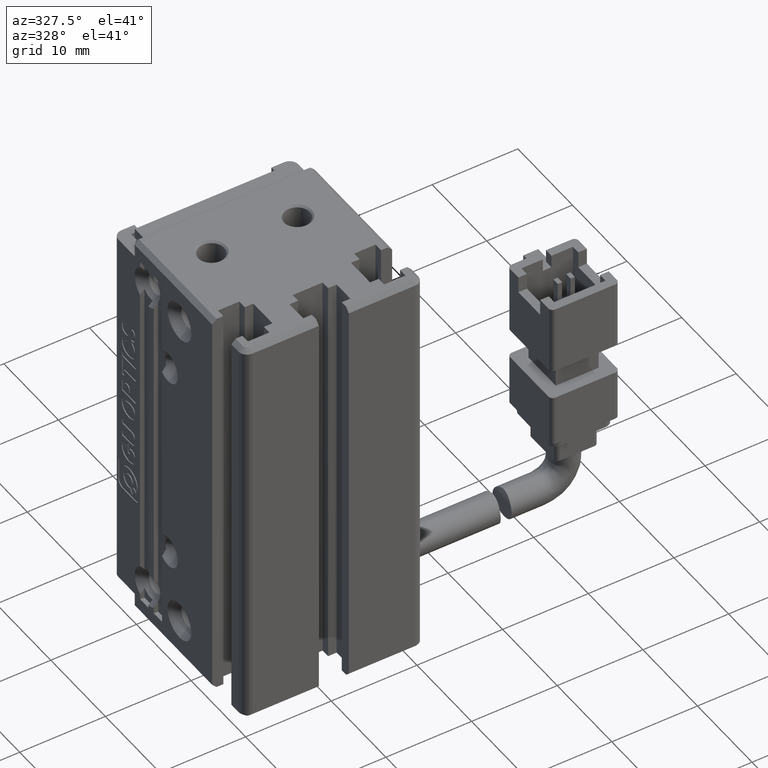
[diagram: clean part render]
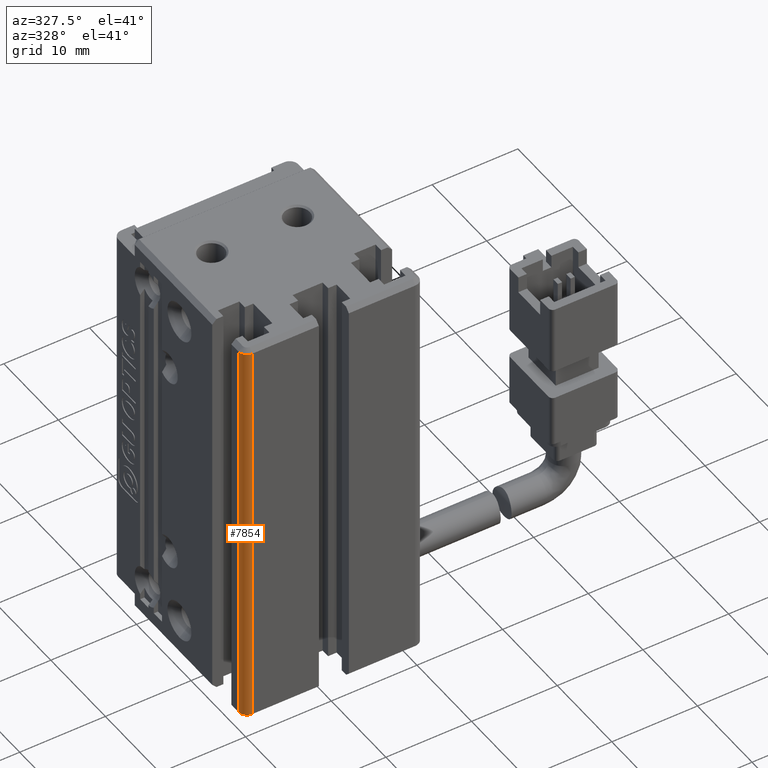
[diagram: same view with one face highlighted and labeled with its STEP entity id]
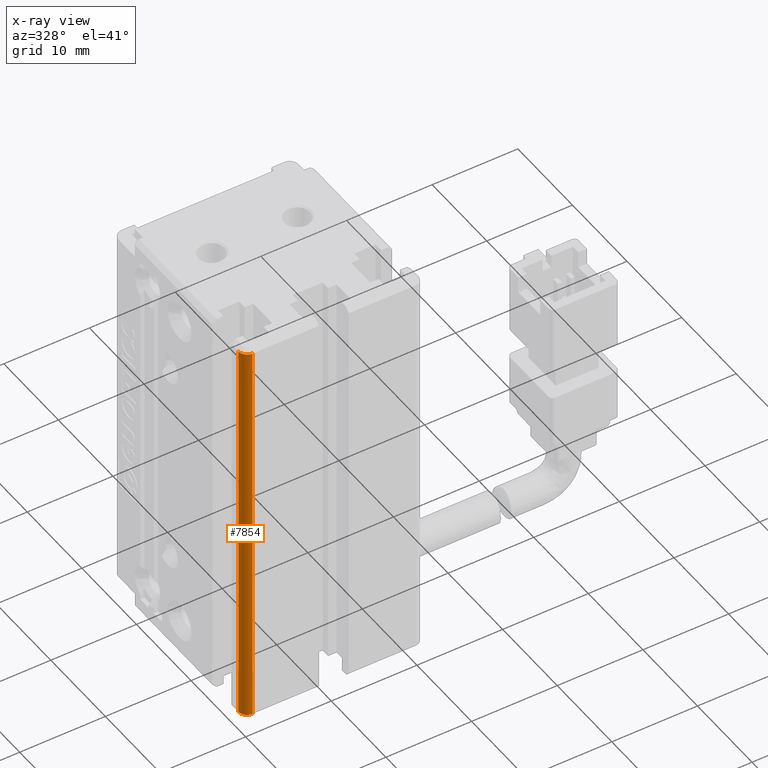
[diagram: x-ray of the same camera — body ghosted, the highlighted face saturated]
A machine part, auxiliary view. The second image highlights one B-rep face of the part: STEP entity #7854.
The next image is the same camera in x-ray: the body ghosted, the highlighted face saturated — about 0% of this face is hidden behind the body in this view.
In plain terms, the highlighted cylindrical surface (edge-blend (fillet) strip) has radius 1 mm, axis along (-0, -0, -1).
Its self-contained STEP definition (entity closure, byte-faithful):
#1322 = DIRECTION ( 'NONE',  ( -0.0000000000000000000, -0.0000000000000000000, -1.000000000000000000 ) ) ;
#2115 = EDGE_CURVE ( 'NONE', #31357, #23842, #9657, .T. ) ;
#6256 = CARTESIAN_POINT ( 'NONE',  ( 31.42537974683542900, 10.99073232305496000, -138.5000000000031800 ) ) ;
#7444 = CARTESIAN_POINT ( 'NONE',  ( 30.42537974683542500, 11.99073232304837000, -91.00000000000000000 ) ) ;
#7785 = EDGE_CURVE ( 'NONE', #13890, #22453, #28675, .T. ) ;
#7854 = ADVANCED_FACE ( 'NONE', ( #15033 ), #19241, .T. ) ;
#8144 = ORIENTED_EDGE ( 'NONE', *, *, #21600, .F. ) ;
#8344 = CARTESIAN_POINT ( 'NONE',  ( 31.42537974683542900, 11.99073232304837000, -91.00000000000000000 ) ) ;
#8643 = CIRCLE ( 'NONE', #21533, 1.000000000000000900 ) ;
#9271 = CARTESIAN_POINT ( 'NONE',  ( 31.42537974683542900, 11.99073232304837000, -91.50000000000000000 ) ) ;
#9657 = LINE ( 'NONE', #21112, #10577 ) ;
#10577 = VECTOR ( 'NONE', #35761, 1000.000000000000000 ) ;
#10613 = CARTESIAN_POINT ( 'NONE',  ( 31.42537974683542900, 10.99073232304837000, -91.50000000000000000 ) ) ;
#11218 = DIRECTION ( 'NONE',  ( -1.000000000000000000, 0.0000000000000000000, 0.0000000000000000000 ) ) ;
#11999 = DIRECTION ( 'NONE',  ( -0.0000000000000000000, -0.0000000000000000000, -1.000000000000000000 ) ) ;
#12094 = EDGE_LOOP ( 'NONE', ( #31221, #8144, #25140, #36581 ) ) ;
#13890 = VERTEX_POINT ( 'NONE', #15743 ) ;
#14071 = CIRCLE ( 'NONE', #33898, 0.9999999999736192100 ) ;
#14884 = DIRECTION ( 'NONE',  ( 1.000000000000000000, -1.734723476022570500E-015, 0.0000000000000000000 ) ) ;
#14971 = EDGE_CURVE ( 'NONE', #31357, #13890, #8643, .T. ) ;
#15033 = FACE_OUTER_BOUND ( 'NONE', #12094, .T. ) ;
#15743 = CARTESIAN_POINT ( 'NONE',  ( 30.42537974683542500, 11.99073232304837000, -91.50000000000000000 ) ) ;
#19241 = CYLINDRICAL_SURFACE ( 'NONE', #34894, 1.000000000000000900 ) ;
#20701 = VECTOR ( 'NONE', #1322, 1000.000000000000000 ) ;
#21112 = CARTESIAN_POINT ( 'NONE',  ( 31.42537974683542900, 10.99073232304837000, -91.00000000000000000 ) ) ;
#21533 = AXIS2_PLACEMENT_3D ( 'NONE', #9271, #11999, #27363 ) ;
#21600 = EDGE_CURVE ( 'NONE', #23842, #22453, #14071, .T. ) ;
#22453 = VERTEX_POINT ( 'NONE', #37844 ) ;
#23842 = VERTEX_POINT ( 'NONE', #6256 ) ;
#25140 = ORIENTED_EDGE ( 'NONE', *, *, #2115, .F. ) ;
#26044 = DIRECTION ( 'NONE',  ( -0.0000000000000000000, -0.0000000000000000000, -1.000000000000000000 ) ) ;
#27363 = DIRECTION ( 'NONE',  ( -1.000000000000000000, 0.0000000000000000000, 0.0000000000000000000 ) ) ;
#28675 = LINE ( 'NONE', #7444, #20701 ) ;
#29993 = CARTESIAN_POINT ( 'NONE',  ( 31.42537974683542900, 11.99073232304837000, -138.5000000000127300 ) ) ;
#31221 = ORIENTED_EDGE ( 'NONE', *, *, #7785, .T. ) ;
#31357 = VERTEX_POINT ( 'NONE', #10613 ) ;
#33898 = AXIS2_PLACEMENT_3D ( 'NONE', #29993, #35610, #14884 ) ;
#34894 = AXIS2_PLACEMENT_3D ( 'NONE', #8344, #26044, #11218 ) ;
#35610 = DIRECTION ( 'NONE',  ( -0.0000000000000000000, -0.0000000000000000000, -1.000000000000000000 ) ) ;
#35761 = DIRECTION ( 'NONE',  ( 0.0000000000000000000, -0.0000000000000000000, -1.000000000000000000 ) ) ;
#36581 = ORIENTED_EDGE ( 'NONE', *, *, #14971, .T. ) ;
#37844 = CARTESIAN_POINT ( 'NONE',  ( 30.42537974684202200, 11.99073232304837000, -138.5000000000031800 ) ) ;